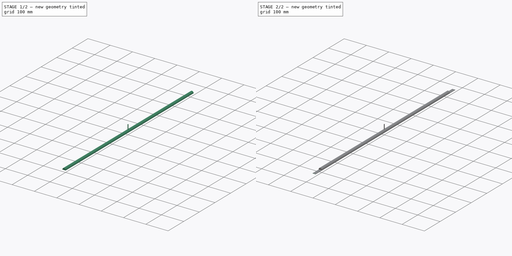
[diagram: build sequence overview — one tinted view per stage of 2, left to right]
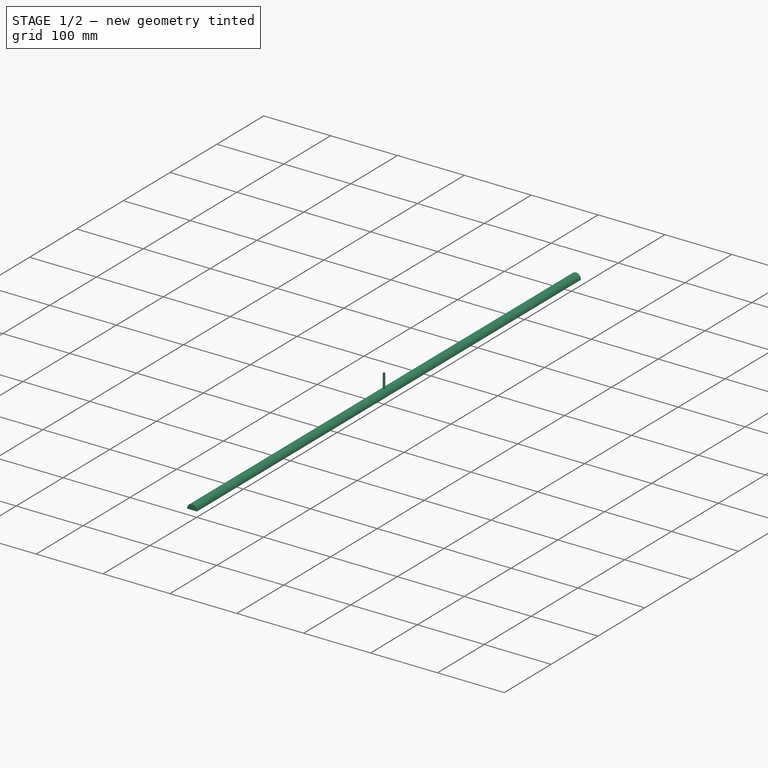
[diagram: stage 1 of 2 — iso view after this stage's code; geometry added in this stage tinted green]
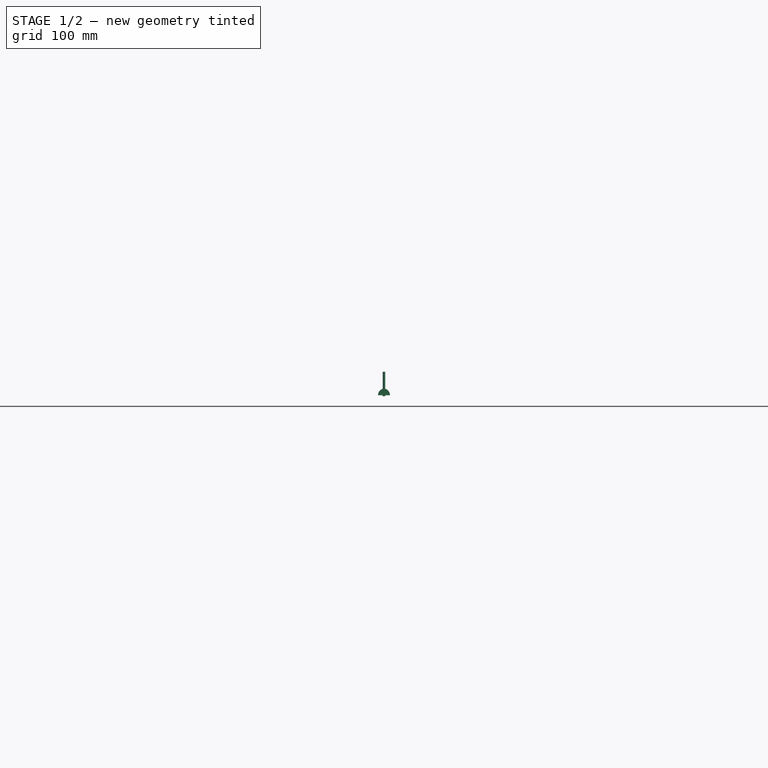
[diagram: stage 1 of 2 — front view after this stage's code; geometry added in this stage tinted green]
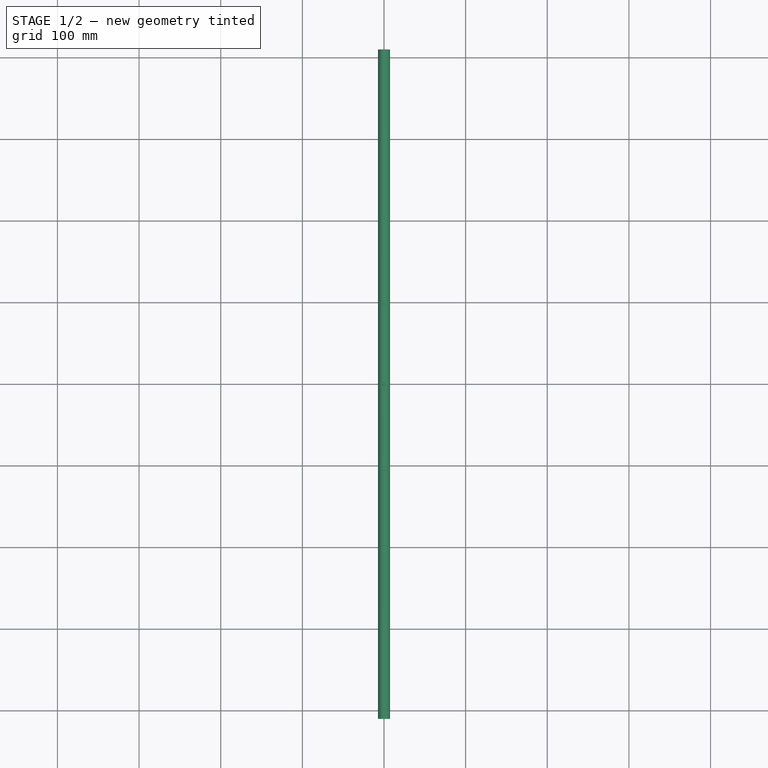
[diagram: stage 1 of 2 — top view after this stage's code; geometry added in this stage tinted green]
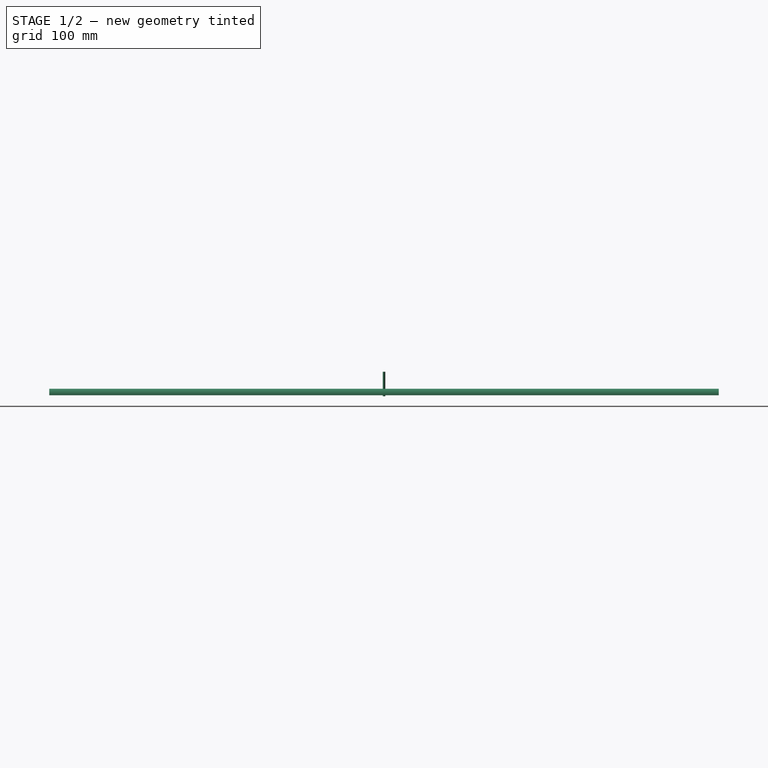
[diagram: stage 1 of 2 — right view after this stage's code; geometry added in this stage tinted green]
FCSTD DOCUMENT  (FreeCAD 1.1R38827 (Git))
Label: ULZ-P02-14W
License: All rights reserved
LicenseURL: http://en.wikipedia.org/wiki/All_rights_reserved
objects: Sketcher::SketchObject×4, Part::FeaturePython×4, App::DocumentObjectGroup×3, Path::FeaturePython×3, App::FeaturePython×1, Part::Part2DObjectPython×1, PartDesign::SubShapeBinder×1, PartDesign::Pad×1, PartDesign::CoordinateSystem×1, PartDesign::Body×1
note: 20 computed .brp shape members not serialized (recipe doc carries the construction recipe); baked Part::Feature solids carry a one-line shape summary decoded from their .brp

FEATURE [Sketcher::SketchObject] Sketch  label="holes"
  ArcFitTolerance = 0
  FullyConstrained = true
  MakeInternals = false
  sketch-geometry (3):
    g0: Circle CenterX=-4.15 CenterY=445 CenterZ=0 NormalX=0 NormalY=0 NormalZ=1 AngleXU=0 Radius=1.6
    g1: Circle CenterX=4.15 CenterY=-445 CenterZ=0 NormalX=0 NormalY=0 NormalZ=1 AngleXU=0 Radius=1.6
    g2: GeomPoint [constr] X=-9.05 Y=0 Z=0
  constraints (8):
    c: Symmetric(g1,g0,g-1)
    c: Distance(g0,g1) = 890.039
    c: PointOnObject(g2,g-1)
    c: DistanceX(g2,g0) = 4.9
    c: DistanceX(g2) = -9.05
    c: DistanceY(g1,g0) = 890
    c: Equal(g1,g0)
    c: Diameter(g1) = 3.2
FEATURE [App::FeaturePython] SetupSheet  # Path/CAM operation (typed FeaturePython)
  ClearanceHeightExpression = OpStockZMax+SetupSheet.ClearanceHeightOffset
  ClearanceHeightOffset = 5
  CoolantMode = 0
  CoolantModes = None | Flood | Mist
  FinalDepthExpression = -0.1 mm
  HorizRapid = 0
  ProfileDirection = 1
  ProfileSide = 0
  ProfileUseComp = true
  ProfileprocessCircles = true
  ProfileprocessHoles = true
  ProfileprocessPerimeter = true
  SafeHeightExpression = OpStockZMax+SetupSheet.SafeHeightOffset
  SafeHeightOffset = 3
  StartDepthExpression = 3 mm
  StepDownExpression = 4 mm
  VertRapid = 0
FEATURE [Part::Part2DObjectPython] Clone2D  label="Model-Sketch"  # Draft 2D object (typed FeaturePython)
  Fuse = false
  Objects = -> [Sketch]
  PathResource = Model
  Placement = pos=(-5.75,446.581,0) rot=(0,0,1;0rad)
  Scale = (1,1,1)
FEATURE [App::DocumentObjectGroup] Model
  Group = -> [Clone2D]
FEATURE [Part::FeaturePython] ToolBit  label="3.175mm Endmill"  # Path/CAM toolbit (typed FeaturePython)
  BitPropertyNames = Chipload | CuttingEdgeHeight | Diameter | Flutes | Length | Material | ShankDiameter | SpindleDirection
  BitShape = <path>
  Chipload = 0
  CuttingEdgeHeight = 30
  Diameter = 3.175
  Flutes = 0
  Length = 10
  Material = 0
  ShankDiameter = 3
  ShapeName = endmill
  SpindleDirection = 0
FEATURE [Path::FeaturePython] Profile  # Path/CAM operation (typed FeaturePython)
  Active = true
  AreaParams:
    Tolerance = 1e-07
    FitArcs = True
    Simplify = False
    CleanDistance = 0.0
    Accuracy = 0.01
    Unit = 1.0
    MinArcPoints = 4
    MaxArcPoints = 100
    ClipperScale = 10000000.0
    Fill = 0
    Coplanar = 0
    Reorient = True
    Outline = False
    Explode = False
    OpenMode = 0
    Deflection = 0.01
    SubjectFill = 0
    ClipFill = 0
    Offset = -1.5875
    ExtraPass = 0
    Stepover = 0.0
    LastStepover = 0.0
    JoinType = 0
    EndType = 0
    MiterLimit = 2.0
    RoundPrecision = 0.0
    PocketMode = 0
    ToolRadius = 1.0
    PocketExtraOffset = 0.0
    PocketStepover = 0.0
    PocketLastStepover = 0.0
    FromCenter = False
    Angle = 45.0
    AngleShift = 0.0
    Shift = 0.0
    Thicken = False
    SectionCount = -1
    Stepdown = 1.0
    SectionOffset = 0.0
    SectionTolerance = 1e-06
    SectionMode = 2
    Project = False
  ClearanceHeight = 6
  CoolantMode = 0
  CycleTime = 00:00:57
  Direction = 1
  FinalDepth = -0.1
  HandleMultipleFeatures = 0
  JoinType = 0
  MiterLimit = 0.1
  OffsetExtra = 0
  OpFinalDepth = 0
  OpStartDepth = 1
  OpStockZMax = 1
  OpStockZMin = 0
  OpToolDiameter = 3.175
  PathParams = {'orientation': 1, 'feedrate': 33.333333333333336, 'feedrate_v': 8.333333333333334, 'verbose': True, 'resume_height': 4.0, 'retraction': 6.0, 'return_end': True, 'preamble': False}
  SafeHeight = 4
  Side = 1
  SplitArcs = false
  StartDepth = 3
  StartPoint = (0,0,0)
  StepDown = 4
  ToolController = -> __175mm_Endmill
  UseComp = true
  UseStartPoint = false
  processCircles = true
  processHoles = true
  processPerimeter = true
  expr: ClearanceHeight = OpStockZMax + SetupSheet.ClearanceHeightOffset
  expr: FinalDepth = -0.1 mm
  expr: SafeHeight = OpStockZMax + SetupSheet.SafeHeightOffset
  expr: StartDepth = 3 mm
  expr: StepDown = 4 mm
FEATURE [App::DocumentObjectGroup] Operations
  Group = -> [Profile]
FEATURE [Path::FeaturePython] Job  # Path/CAM operation (typed FeaturePython)
  CycleTime = 00:00:57
  Fixtures = G54
  GeometryTolerance = 0.01
  JobType = 0
  LastPostProcessDate = 2023-12-11 14:23:56.391449
  LastPostProcessOutput = <userpath>/2CAF-B51C/Job-0.tap
  Model = -> Model
  Operations = -> Operations
  OrderOutputBy = 2
  PostProcessor = 3
  PostProcessorOutputFile = %j.tap
  SetupSheet = -> SetupSheet
  SplitOutput = true
  Stock = -> Stock
  Tools = -> Tools
FEATURE [Part::FeaturePython] BoundBox  label="BoundBox of Model-Sketch"  # WARN: FeaturePython — macro-defined, semantics opaque (R4)
  Center = (-5.75,446.581,0)
  CompoundTraversal = 0
  OrientMode = 0
  Padding = 0
  Precision = false
  ScaleFactor = 1
  ShapeLink = -> Clone2D
  Size = (11.5,893.177,0)
FEATURE [Sketcher::SketchObject] Sketch001
  ArcFitTolerance = 0
  FullyConstrained = true
  MakeInternals = false
  Placement = pos=(0,0,0) rot=(1,0,0;1.5708rad)
  sketch-geometry (7):
    g0: LineSegment StartX=-7.3 StartY=1.25 StartZ=0 EndX=7.3 EndY=1.25 EndZ=0
    g1: GeomPoint [constr] X=0 Y=9.25 Z=0
    g2: ArcOfEllipse CenterX=5.1e-15 CenterY=1.25 CenterZ=0 NormalX=0 NormalY=0 NormalZ=1 MajorRadius=8 MinorRadius=7.3 AngleXU=-1.5708 StartAngle=1.5708 EndAngle=4.71239
    g3: LineSegment [constr] StartX=1e-14 StartY=-6.75 StartZ=0 EndX=0 EndY=9.25 EndZ=0
    g4: LineSegment [constr] StartX=7.3 StartY=1.25 StartZ=0 EndX=-7.3 EndY=1.25 EndZ=0
    g5: GeomPoint [constr] X=7.7e-15 Y=-2.02261 Z=0
    g6: GeomPoint [constr] X=3e-15 Y=4.52261 Z=0
  constraints (9):
    c: DistanceX(g0,g0) = 14.6
    c: PointOnObject(g1,g-2)
    c: InternalAlignment(g3-g6 -> g2) x4
    c: Coincident(g3,g1)
    c: Perpendicular(g2,g0) = 4.71239
    c: Perpendicular(g2,g0) = 1.5708
    c: Horizontal(g0)
    c: DistanceY(g2,g1) = 8
    c: DistanceY(g-1,g2) = 1.25
FEATURE [Sketcher::SketchObject] Sketch002
  ArcFitTolerance = 0
  FullyConstrained = true
  MakeInternals = false
  Placement = pos=(0,0,0) rot=(1,0,0;1.5708rad)
  sketch-geometry (8):
    g0: LineSegment StartX=-9 StartY=-5e-16 StartZ=0 EndX=9 EndY=-5e-16 EndZ=0
    g1: LineSegment [constr] StartX=-9 StartY=-5e-16 StartZ=0 EndX=0 EndY=11 EndZ=0
    g2: LineSegment [constr] StartX=7e-16 StartY=11 StartZ=0 EndX=9 EndY=0 EndZ=0
    g3: ArcOfEllipse CenterX=0 CenterY=0 CenterZ=0 NormalX=0 NormalY=0 NormalZ=1 MajorRadius=11 MinorRadius=9 AngleXU=1.5708 StartAngle=4.71239 EndAngle=7.85398
    g4: LineSegment [constr] StartX=7e-16 StartY=11 StartZ=0 EndX=-7e-16 EndY=-11 EndZ=0
    g5: LineSegment [constr] StartX=-9 StartY=6e-16 StartZ=0 EndX=9 EndY=-6e-16 EndZ=0
    g6: GeomPoint [constr] X=7e-16 Y=6.32456 Z=0
    g7: GeomPoint [constr] X=-4e-16 Y=-6.32456 Z=0
  constraints (12):
    c: DistanceX(g0,g0) = 18
    c: Coincident(g0,g1)
    c: Coincident(g1,g2)
    c: Coincident(g2,g0)
    c: Distance(g1,g0) = 11
    c: InternalAlignment(g4-g7 -> g3) x4
    c: Perpendicular(g3,g0) = 1.5708
    c: Equal(g1,g2)
    c: Horizontal(g0)
    c: Coincident(g3,g0)
    c: Coincident(g4,g1)
    c: Coincident(g3,g-1)
FEATURE [PartDesign::SubShapeBinder] Binder
  BindCopyOnChange = 0
  BindMode = 0
  ClaimChildren = true
  Context = -> Body [Binder.]
  Fuse = false
  MakeFace = true
  OffsetFill = false
  OffsetIntersection = false
  OffsetJoinType = 0
  OffsetOpenResult = false
  PartialLoad = false
  Relative = true
  Support = -> [Sketch001]
  _Version = 2
FEATURE [PartDesign::Pad] Pad
  Direction = (0,1,0)
  Length = 820
  Length2 = 10
  Midplane = true
  Profile = -> Binder
  Suppressed = false
  Type = 0
FEATURE [PartDesign::CoordinateSystem] Local_CS
  AttacherType = Attacher::AttachEngine3D
  AttachmentSupport = -> [XY_Plane]
  MapMode = 5
FEATURE [PartDesign::Body] Body
  AllowCompound = false
  Group = -> [Binder,Pad,Local_CS]
  Origin = -> Origin
  Tip = -> Pad
FEATURE [Sketcher::SketchObject] Sketch003
  ArcFitTolerance = 0
  FullyConstrained = true
  MakeInternals = false
  Placement = pos=(0,416,0) rot=(0,0,1;0rad)
  sketch-geometry (8):
    g0: LineSegment StartX=-9 StartY=29.05 StartZ=0 EndX=-9 EndY=0 EndZ=0
    g1: LineSegment StartX=-9 StartY=0 StartZ=0 EndX=9 EndY=0 EndZ=0
    g2: LineSegment StartX=9 StartY=0 StartZ=0 EndX=9 EndY=21.4 EndZ=0
    g3: LineSegment StartX=9 StartY=21.4 StartZ=0 EndX=0.256748 EndY=32.3031 EndZ=0
    g4: ArcOfCircle CenterX=-3.8 CenterY=29.05 CenterZ=0 NormalX=0 NormalY=0 NormalZ=1 AngleXU=0 Radius=5.2 StartAngle=0.675901 EndAngle=3.14159
    g5: GeomPoint [constr] X=-9 Y=43.8466 Z=0
    g6: LineSegment [constr] StartX=0 StartY=34.25 StartZ=0 EndX=-3.8 EndY=34.25 EndZ=0
    g7: Circle CenterX=-3.8 CenterY=29.05 CenterZ=0 NormalX=0 NormalY=0 NormalZ=1 AngleXU=0 Radius=2
  constraints (20):
    c: Vertical(g0)
    c: Coincident(g0,g1)
    c: PointOnObject(g1,g-1)
    c: Coincident(g1,g2)
    c: Vertical(g2)
    c: Coincident(g2,g3)
    c: Symmetric(g0,g1,g-2)
    c: PointOnObject(g5,g0)
    c: PointOnObject(g5,g3)
    c: Tangent(g0,g4) = -1.5708
    c: Tangent(g3,g4) = -1.5708
    c: PointOnObject(g6,g-2)
    c: Tangent(g6,g4) = -1.5708
    c: Horizontal(g6)
    c: DistanceY(g6) = 34.25
    c: DistanceX(g0,g1) = 18
    c: DistanceY(g2,g2) = 21.4
    c: Radius(g4) = 5.2
    c: Coincident(g7,g4)
    c: Diameter(g7) = 4
FEATURE [Part::FeaturePython] Array  # Draft array (typed FeaturePython)
  Angle = 360
  ArrayType = 1
  Axis = (0,0,1)
  Base = -> Sketch003
  Center = (0,0,0)
  Count = 2
  Fuse = true
  IntervalAxis = (0,0,0)
  IntervalX = (50,0,0)
  IntervalY = (0,50,0)
  IntervalZ = (0,0,50)
  NumberCircles = 3
  NumberPolar = 2
  NumberX = 2
  NumberY = 2
  NumberZ = 1
  RadialDistance = 50
  Symmetry = 1
  TangentialDistance = 25
note: 1 file-system path scrubbed to <path> (originals preserved in the JSON sidecar)
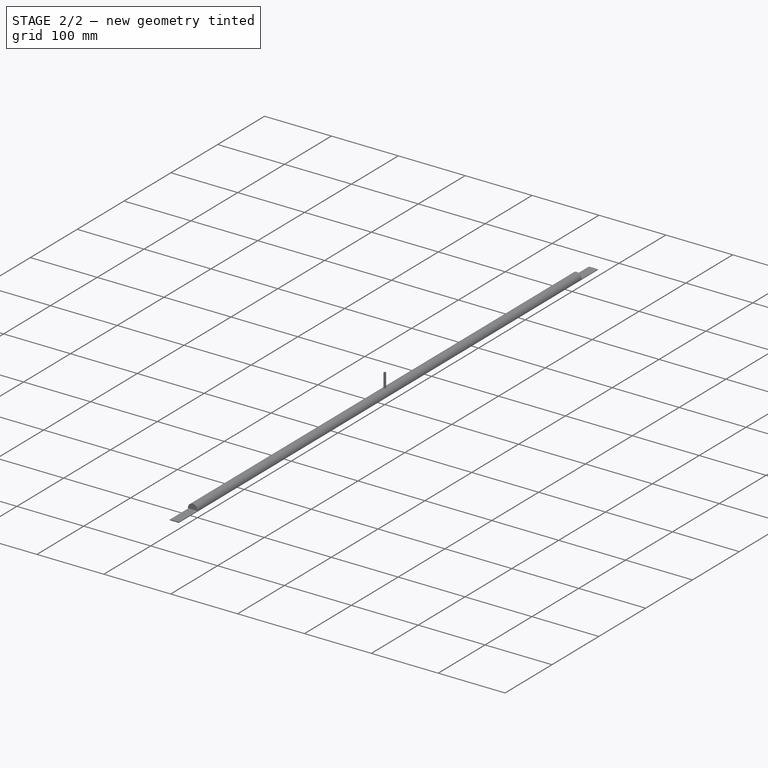
[diagram: stage 2 of 2 — iso view after this stage's code; geometry added in this stage tinted green]
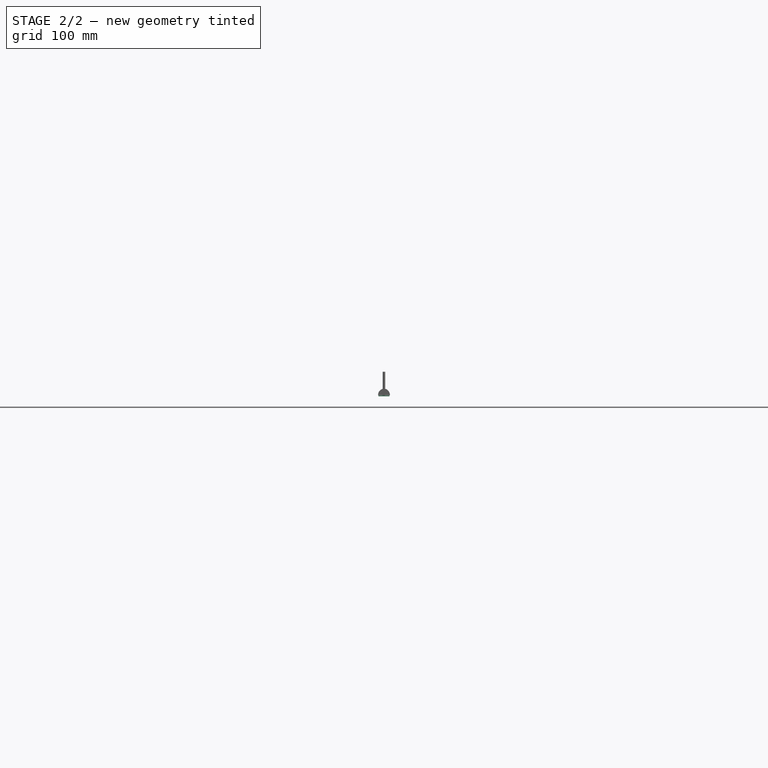
[diagram: stage 2 of 2 — front view after this stage's code; geometry added in this stage tinted green]
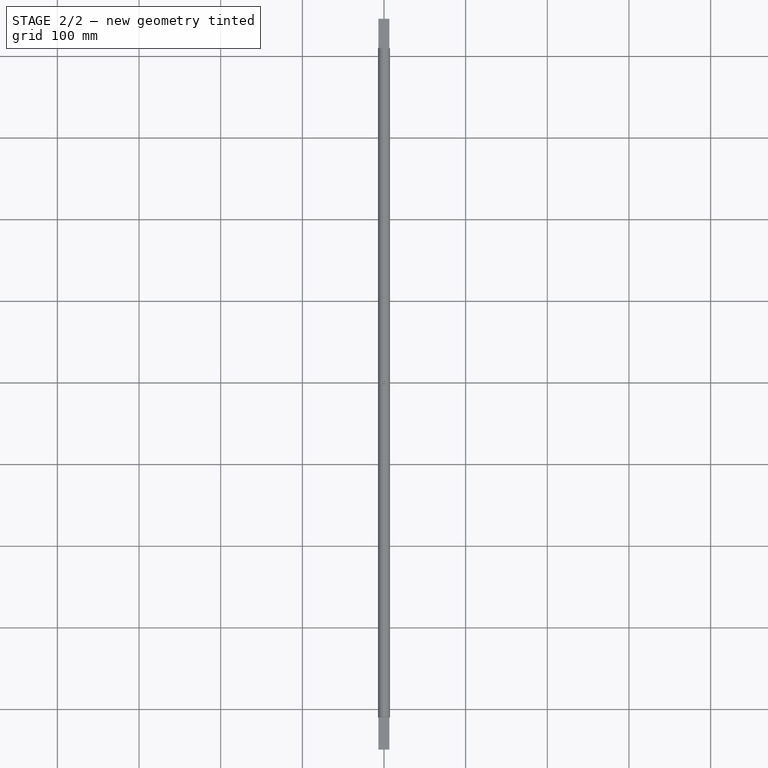
[diagram: stage 2 of 2 — top view after this stage's code; geometry added in this stage tinted green]
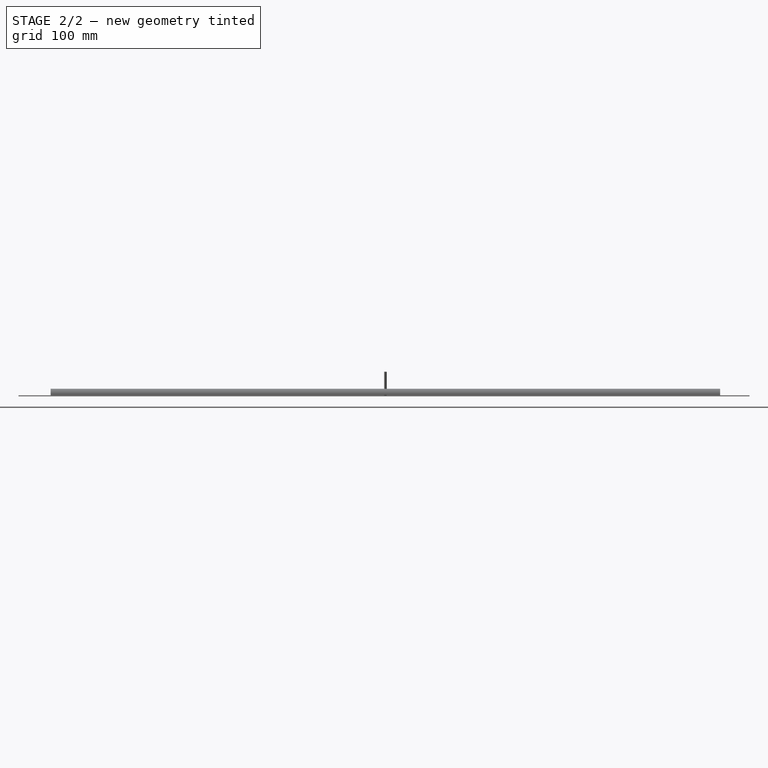
[diagram: stage 2 of 2 — right view after this stage's code; geometry added in this stage tinted green]
FEATURE [Path::FeaturePython] __175mm_Endmill  label="3.175mm Endmill001"  # Path/CAM operation (typed FeaturePython)
  HorizFeed = 33.3333
  HorizRapid = 0
  SpindleDir = 0
  SpindleSpeed = 18000
  Tool = -> ToolBit
  ToolNumber = 1
  VertFeed = 8.33333
  VertRapid = 0
  expr: HorizRapid = SetupSheet.HorizRapid
  expr: VertRapid = SetupSheet.VertRapid
FEATURE [App::DocumentObjectGroup] Tools
  Group = -> [__175mm_Endmill]
FEATURE [Part::FeaturePython] Stock  # WARN: FeaturePython — macro-defined, semantics opaque (R4)
  Base = -> Model
  ExtXneg = 1
  ExtXpos = 1
  ExtYneg = 1
  ExtYpos = 1
  ExtZneg = 0
  ExtZpos = 1
  Placement = pos=(-5.89217,-448.284,0) rot=(0,0,1;0rad)
  StockType = FromBase
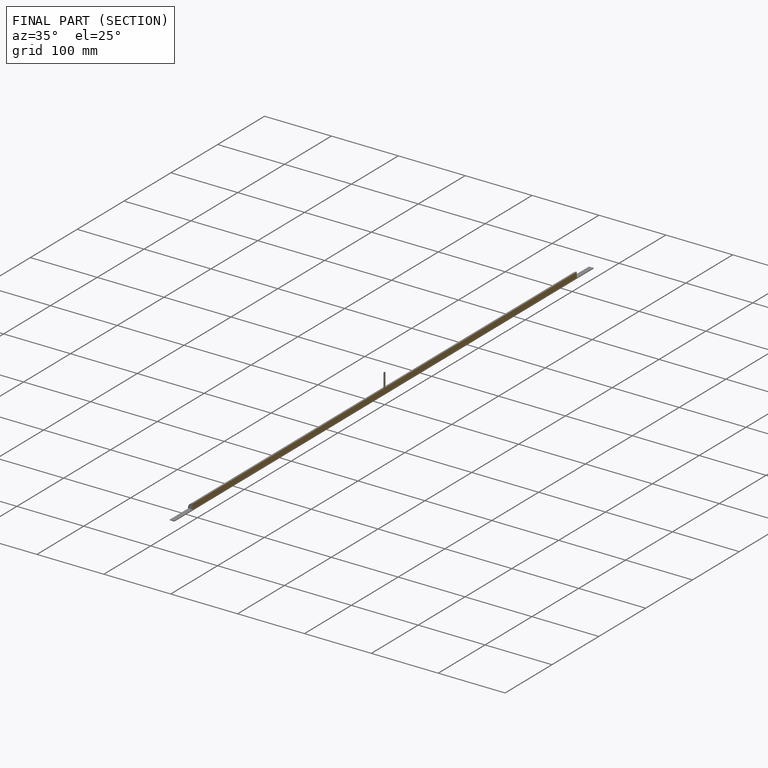
[diagram: finished part — half-section view (interior)]
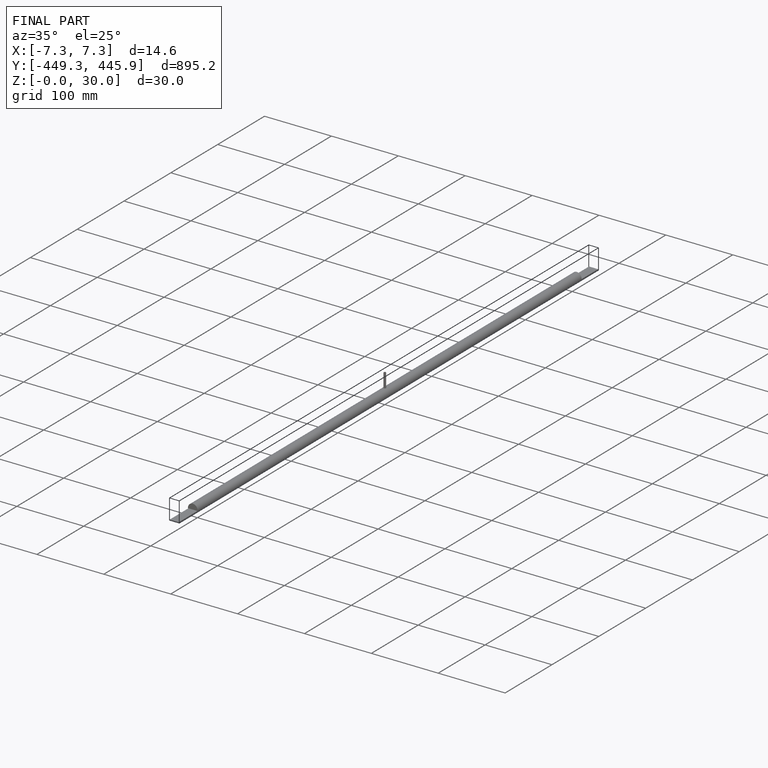
[diagram: finished part — iso view with bounding-box wireframe]
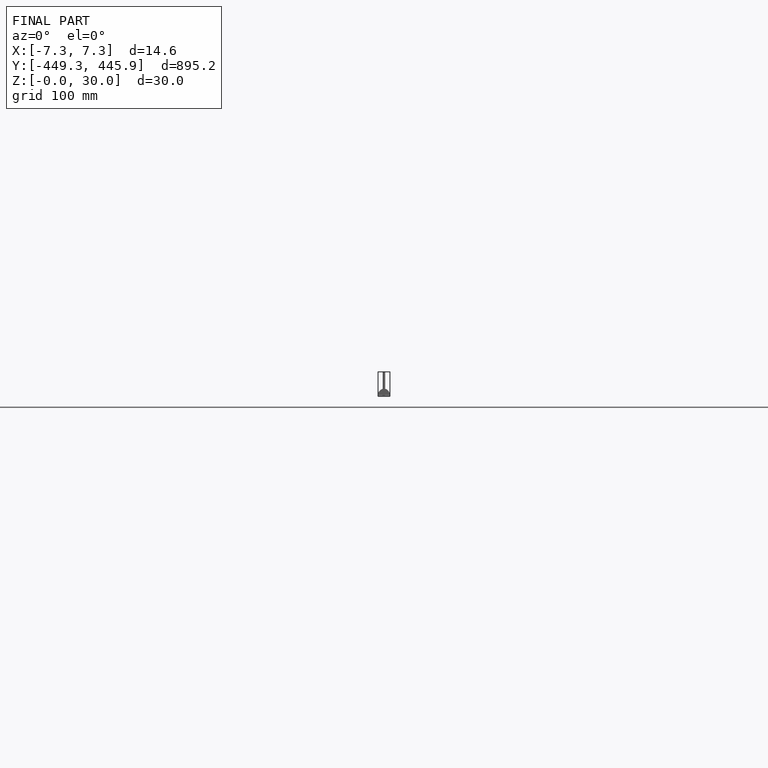
[diagram: finished part — front view with bounding-box wireframe]
